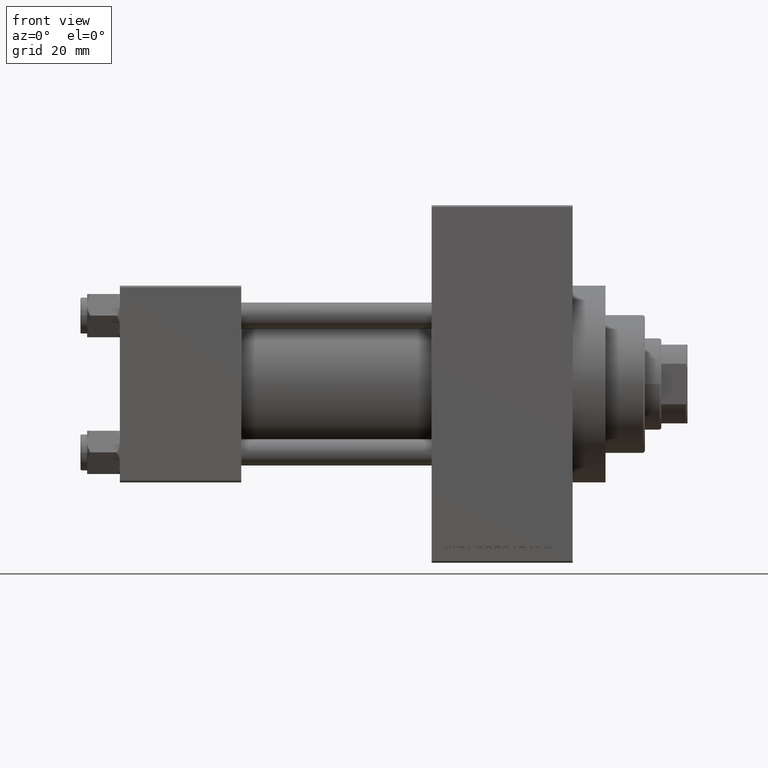
[diagram: clean part render]
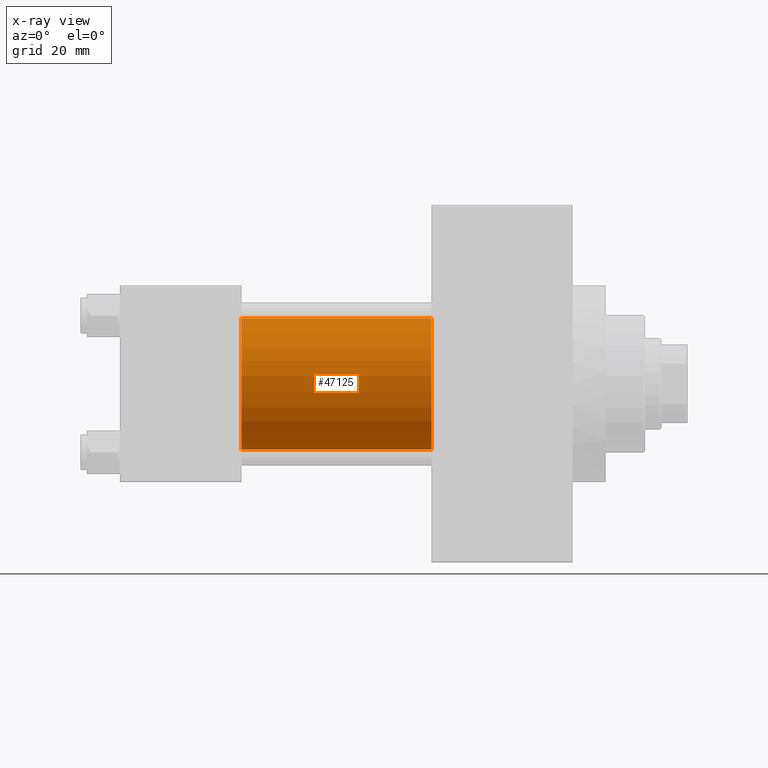
[diagram: x-ray — body ghosted, one internal face saturated and labeled with its STEP entity id]
A machine part, front view, then the same camera in x-ray: the body is ghosted and one INTERNAL B-rep face — a face not visible from any outside direction — is saturated and labeled: STEP entity #47125.
In plain terms, the highlighted cylindrical surface (partial cylindrical patch) has radius 20 mm, axis along (-1, -0, -0).
Its self-contained STEP definition (entity closure, byte-faithful):
#252 = DIRECTION ( 'NONE',  ( -1.000000000000000000, -0.000000000000000000, -0.000000000000000000 ) ) ;
#1752 = VERTEX_POINT ( 'NONE', #23464 ) ;
#2404 = CARTESIAN_POINT ( 'NONE',  ( 37.00000000000000000, -1.527916156705046464E-16, -20.00000000000000000 ) ) ;
#2518 = AXIS2_PLACEMENT_3D ( 'NONE', #41942, #12538, #38130 ) ;
#2571 = CARTESIAN_POINT ( 'NONE',  ( 37.00000000000000000, -2.602085213965210642E-15, 20.00000000000000000 ) ) ;
#4752 = VECTOR ( 'NONE', #14549, 1000.000000000000000 ) ;
#5092 = AXIS2_PLACEMENT_3D ( 'NONE', #32925, #46784, #35808 ) ;
#5947 = CARTESIAN_POINT ( 'NONE',  ( 95.00000000000000000, -2.602085213965210642E-15, 0.000000000000000000 ) ) ;
#6946 = CARTESIAN_POINT ( 'NONE',  ( 95.00000000000000000, -2.602085213965210642E-15, 20.00000000000000000 ) ) ;
#8589 = VECTOR ( 'NONE', #252, 1000.000000000000000 ) ;
#12538 = DIRECTION ( 'NONE',  ( 1.000000000000000000, 0.000000000000000000, 0.000000000000000000 ) ) ;
#14549 = DIRECTION ( 'NONE',  ( -1.000000000000000000, -0.000000000000000000, -0.000000000000000000 ) ) ;
#14980 = EDGE_LOOP ( 'NONE', ( #37787, #26336, #30008, #46283 ) ) ;
#16237 = CIRCLE ( 'NONE', #2518, 20.00000000000000000 ) ;
#18194 = LINE ( 'NONE', #6946, #8589 ) ;
#20379 = CIRCLE ( 'NONE', #5092, 20.00000000000000000 ) ;
#23464 = CARTESIAN_POINT ( 'NONE',  ( 95.00000000000000000, -2.602085213965210642E-15, 20.00000000000000000 ) ) ;
#26336 = ORIENTED_EDGE ( 'NONE', *, *, #33319, .T. ) ;
#26524 = VERTEX_POINT ( 'NONE', #2571 ) ;
#30008 = ORIENTED_EDGE ( 'NONE', *, *, #34399, .F. ) ;
#30955 = VERTEX_POINT ( 'NONE', #2404 ) ;
#31160 = AXIS2_PLACEMENT_3D ( 'NONE', #5947, #42047, #38951 ) ;
#32835 = EDGE_CURVE ( 'NONE', #1752, #26524, #18194, .T. ) ;
#32925 = CARTESIAN_POINT ( 'NONE',  ( 95.00000000000000000, -2.602085213965210642E-15, 0.000000000000000000 ) ) ;
#33319 = EDGE_CURVE ( 'NONE', #38309, #30955, #37235, .T. ) ;
#34399 = EDGE_CURVE ( 'NONE', #26524, #30955, #16237, .T. ) ;
#34646 = FACE_OUTER_BOUND ( 'NONE', #14980, .T. ) ;
#35589 = CYLINDRICAL_SURFACE ( 'NONE', #31160, 20.00000000000000000 ) ;
#35808 = DIRECTION ( 'NONE',  ( 0.000000000000000000, 0.000000000000000000, -1.000000000000000000 ) ) ;
#36765 = CARTESIAN_POINT ( 'NONE',  ( 95.00000000000000000, -1.527916156705046464E-16, -20.00000000000000000 ) ) ;
#37235 = LINE ( 'NONE', #36765, #4752 ) ;
#37787 = ORIENTED_EDGE ( 'NONE', *, *, #44315, .T. ) ;
#38130 = DIRECTION ( 'NONE',  ( 0.000000000000000000, 0.000000000000000000, -1.000000000000000000 ) ) ;
#38309 = VERTEX_POINT ( 'NONE', #40365 ) ;
#38951 = DIRECTION ( 'NONE',  ( 0.000000000000000000, 0.000000000000000000, 1.000000000000000000 ) ) ;
#40365 = CARTESIAN_POINT ( 'NONE',  ( 95.00000000000000000, -1.527916156705046464E-16, -20.00000000000000000 ) ) ;
#41942 = CARTESIAN_POINT ( 'NONE',  ( 37.00000000000000000, -2.602085213965210642E-15, 0.000000000000000000 ) ) ;
#42047 = DIRECTION ( 'NONE',  ( -1.000000000000000000, -0.000000000000000000, -0.000000000000000000 ) ) ;
#44315 = EDGE_CURVE ( 'NONE', #1752, #38309, #20379, .T. ) ;
#46283 = ORIENTED_EDGE ( 'NONE', *, *, #32835, .F. ) ;
#46784 = DIRECTION ( 'NONE',  ( 1.000000000000000000, 0.000000000000000000, 0.000000000000000000 ) ) ;
#47125 = ADVANCED_FACE ( 'NONE', ( #34646 ), #35589, .F. ) ;